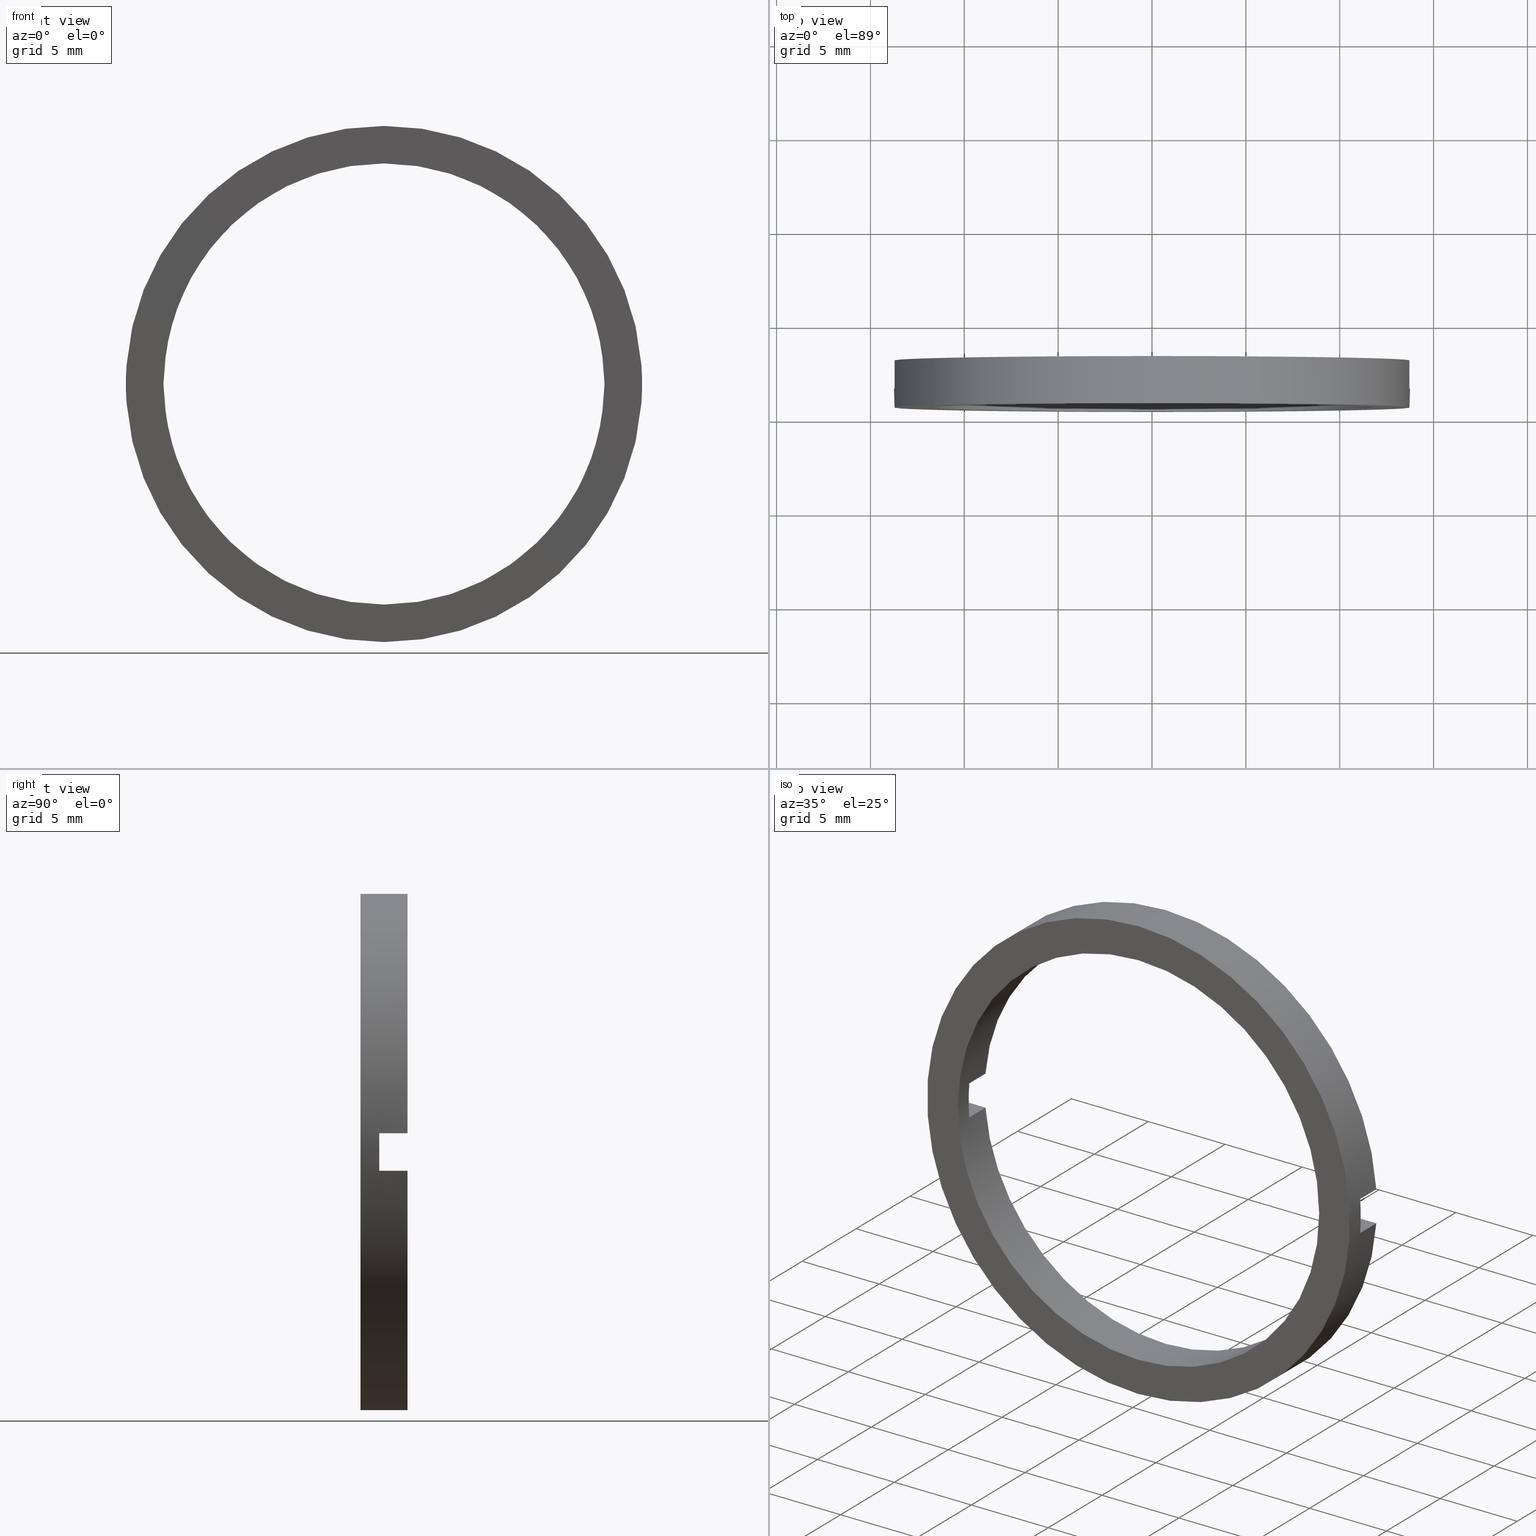
[diagram: canonical four-view strip — front | top / right | iso, engineering-drawing reading convention]
A machine part, canonical four-view strip (front | top / right | iso — engineering-drawing reading convention). The complete STEP part file that produces these views, byte-faithful:
ISO-10303-21;
HEADER;
FILE_DESCRIPTION (( 'STEP AP214' ),
    '1' );
FILE_NAME ('514008.STEP',
    '2019-09-18T06:48:36',
    ( '' ),
    ( '' ),
    'SwSTEP 2.0',
    'SolidWorks 2016',
    '' );
FILE_SCHEMA (( 'AUTOMOTIVE_DESIGN' ));
ENDSEC;

DATA;
#1 = DIRECTION ( 'NONE',  ( 0.0000000000000000000, -1.000000000000000000, 0.0000000000000000000 ) ) ;
#2 = MECHANICAL_DESIGN_GEOMETRIC_PRESENTATION_REPRESENTATION (  '', ( #263 ), #137 ) ;
#3 = DIRECTION ( 'NONE',  ( 0.0000000000000000000, 0.0000000000000000000, 1.000000000000000000 ) ) ;
#4 = EDGE_LOOP ( 'NONE', ( #395, #447, #449, #349 ) ) ;
#5 = CIRCLE ( 'NONE', #358, 11.75000000000000700 ) ;
#6 = ORIENTED_EDGE ( 'NONE', *, *, #388, .T. ) ;
#7 = FILL_AREA_STYLE_COLOUR ( '', #96 ) ;
#8 = PRODUCT_DEFINITION_SHAPE ( 'NONE', 'NONE',  #132 ) ;
#9 = DIRECTION ( 'NONE',  ( -1.000000000000000000, 0.0000000000000000000, -0.0000000000000000000 ) ) ;
#10 = VECTOR ( 'NONE', #275, 1000.000000000000000 ) ;
#11 = EDGE_CURVE ( 'NONE', #53, #174, #494, .T. ) ;
#12 = ORIENTED_EDGE ( 'NONE', *, *, #147, .T. ) ;
#13 = PLANE ( 'NONE',  #306 ) ;
#14 = ADVANCED_FACE ( 'NONE', ( #414, #249 ), #177, .F. ) ;
#15 =( NAMED_UNIT ( * ) PLANE_ANGLE_UNIT ( ) SI_UNIT ( $, .RADIAN. ) );
#16 =( GEOMETRIC_REPRESENTATION_CONTEXT ( 3 ) GLOBAL_UNCERTAINTY_ASSIGNED_CONTEXT ( ( #217 ) ) GLOBAL_UNIT_ASSIGNED_CONTEXT ( ( #484, #439, #367 ) ) REPRESENTATION_CONTEXT ( 'NONE', 'WORKASPACE' ) );
#17 = CARTESIAN_POINT ( 'NONE',  ( 0.0000000000000000000, 0.0000000000000000000, 0.0000000000000000000 ) ) ;
#18 =( LENGTH_UNIT ( ) NAMED_UNIT ( * ) SI_UNIT ( .MILLI., .METRE. ) );
#19 = ADVANCED_FACE ( 'NONE', ( #98 ), #300, .F. ) ;
#20 = EDGE_CURVE ( 'NONE', #101, #59, #65, .T. ) ;
#21 = ORIENTED_EDGE ( 'NONE', *, *, #213, .F. ) ;
#22 = VECTOR ( 'NONE', #455, 1000.000000000000000 ) ;
#23 = CARTESIAN_POINT ( 'NONE',  ( -26.85254027261461800, -1.964249787179430900, 1.000000000000000000 ) ) ;
#24 = EDGE_CURVE ( 'NONE', #268, #174, #299, .T. ) ;
#25 = SURFACE_SIDE_STYLE ('',( #374 ) ) ;
#26 = ORIENTED_EDGE ( 'NONE', *, *, #154, .T. ) ;
#27 = FACE_OUTER_BOUND ( 'NONE', #413, .T. ) ;
#28 = ORIENTED_EDGE ( 'NONE', *, *, #176, .T. ) ;
#29 = CARTESIAN_POINT ( 'NONE',  ( -26.85254027261461800, -1.964249787179430900, -1.000000000000000000 ) ) ;
#30 = FILL_AREA_STYLE_COLOUR ( '', #314 ) ;
#31 = ORIENTED_EDGE ( 'NONE', *, *, #277, .T. ) ;
#32 = CIRCLE ( 'NONE', #92, 13.75000000000000700 ) ;
#33 = VECTOR ( 'NONE', #339, 1000.000000000000000 ) ;
#34 = DIRECTION ( 'NONE',  ( -0.0000000000000000000, 1.000000000000000000, -0.0000000000000000000 ) ) ;
#35 = CARTESIAN_POINT ( 'NONE',  ( 11.75000000000000700, -1.964249787179430900, 0.0000000000000000000 ) ) ;
#36 = DIRECTION ( 'NONE',  ( 0.0000000000000000000, 0.0000000000000000000, 1.000000000000000000 ) ) ;
#37 = CARTESIAN_POINT ( 'NONE',  ( 0.0000000000000000000, -3.464249787179431100, 0.0000000000000000000 ) ) ;
#38 = PRESENTATION_LAYER_ASSIGNMENT (  '', '', ( #392 ) ) ;
#39 = VERTEX_POINT ( 'NONE', #131 ) ;
#40 = DIRECTION ( 'NONE',  ( -0.0000000000000000000, 1.000000000000000000, -0.0000000000000000000 ) ) ;
#41 = CARTESIAN_POINT ( 'NONE',  ( 0.0000000000000000000, -4.464249787179428900, 0.0000000000000000000 ) ) ;
#42 = DIRECTION ( 'NONE',  ( -0.0000000000000000000, -1.000000000000000000, -0.0000000000000000000 ) ) ;
#43 = EDGE_CURVE ( 'NONE', #474, #473, #380, .T. ) ;
#44 = ORIENTED_EDGE ( 'NONE', *, *, #245, .F. ) ;
#45 = DIRECTION ( 'NONE',  ( -0.0000000000000000000, 1.000000000000000000, -0.0000000000000000000 ) ) ;
#46 = FACE_OUTER_BOUND ( 'NONE', #272, .T. ) ;
#47 = ADVANCED_FACE ( 'NONE', ( #438 ), #175, .F. ) ;
#48 = CARTESIAN_POINT ( 'NONE',  ( 1.683889348827611600E-015, -4.464249787179428900, -13.75000000000000700 ) ) ;
#49 = CARTESIAN_POINT ( 'NONE',  ( -13.71358815190248300, -3.464249787179428400, 0.9999999999999995600 ) ) ;
#50 = ADVANCED_FACE ( 'NONE', ( #362 ), #448, .T. ) ;
#51 = APPLICATION_PROTOCOL_DEFINITION ( 'draft international standard', 'automotive_design', 1998, #87 ) ;
#52 = EDGE_CURVE ( 'NONE', #93, #234, #293, .T. ) ;
#53 = VERTEX_POINT ( 'NONE', #95 ) ;
#54 = DIRECTION ( 'NONE',  ( 1.000000000000000000, 0.0000000000000000000, 0.0000000000000000000 ) ) ;
#55 =( NAMED_UNIT ( * ) PLANE_ANGLE_UNIT ( ) SI_UNIT ( $, .RADIAN. ) );
#56 = DIRECTION ( 'NONE',  ( 0.0000000000000000000, -0.0000000000000000000, -1.000000000000000000 ) ) ;
#57 = ORIENTED_EDGE ( 'NONE', *, *, #311, .T. ) ;
#58 = DIRECTION ( 'NONE',  ( -1.000000000000000000, -0.0000000000000000000, -0.0000000000000000000 ) ) ;
#59 = VERTEX_POINT ( 'NONE', #61 ) ;
#60 = CIRCLE ( 'NONE', #500, 11.75000000000000700 ) ;
#61 = CARTESIAN_POINT ( 'NONE',  ( 11.70736947396810200, -3.464249787179428400, 0.9999999999999995600 ) ) ;
#62 = EDGE_CURVE ( 'NONE', #59, #408, #303, .T. ) ;
#63 = DIRECTION ( 'NONE',  ( 0.0000000000000000000, -1.000000000000000000, 0.0000000000000000000 ) ) ;
#64 = VERTEX_POINT ( 'NONE', #456 ) ;
#65 = LINE ( 'NONE', #451, #94 ) ;
#66 = CARTESIAN_POINT ( 'NONE',  ( 0.0000000000000000000, 56.26084262701361600, 0.0000000000000000000 ) ) ;
#67 = PRESENTATION_LAYER_ASSIGNMENT (  '', '', ( #196 ) ) ;
#68 = CARTESIAN_POINT ( 'NONE',  ( 0.0000000000000000000, -3.464249787179428400, 0.0000000000000000000 ) ) ;
#69 = ORIENTED_EDGE ( 'NONE', *, *, #11, .T. ) ;
#70 = FACE_OUTER_BOUND ( 'NONE', #400, .T. ) ;
#71 = EDGE_CURVE ( 'NONE', #372, #201, #188, .T. ) ;
#72 = CARTESIAN_POINT ( 'NONE',  ( -26.85254027261461800, -3.464249787179431100, -1.000000000000000000 ) ) ;
#73 = CARTESIAN_POINT ( 'NONE',  ( 0.0000000000000000000, -1.964249787179434000, 13.75000000000000700 ) ) ;
#74 = LINE ( 'NONE', #378, #82 ) ;
#75 = EDGE_CURVE ( 'NONE', #442, #325, #60, .T. ) ;
#76 = DIRECTION ( 'NONE',  ( 0.0000000000000000000, 0.0000000000000000000, 1.000000000000000000 ) ) ;
#77 = DIRECTION ( 'NONE',  ( 0.0000000000000000000, -0.0000000000000000000, 1.000000000000000000 ) ) ;
#78 =( GEOMETRIC_REPRESENTATION_CONTEXT ( 3 ) GLOBAL_UNCERTAINTY_ASSIGNED_CONTEXT ( ( #343 ) ) GLOBAL_UNIT_ASSIGNED_CONTEXT ( ( #252, #15, #480 ) ) REPRESENTATION_CONTEXT ( 'NONE', 'WORKASPACE' ) );
#79 = CARTESIAN_POINT ( 'NONE',  ( 13.71358815190248500, 56.26084262701361600, -1.000000000000000000 ) ) ;
#80 = CIRCLE ( 'NONE', #403, 11.75000000000000700 ) ;
#81 = ORIENTED_EDGE ( 'NONE', *, *, #277, .F. ) ;
#82 = VECTOR ( 'NONE', #269, 1000.000000000000000 ) ;
#83 = CARTESIAN_POINT ( 'NONE',  ( -26.85254027261461800, -3.464249787179431100, -1.000000000000000000 ) ) ;
#84 = UNCERTAINTY_MEASURE_WITH_UNIT (LENGTH_MEASURE( 1.000000000000000100E-005 ), #18, 'distance_accuracy_value', 'NONE');
#85 = DIRECTION ( 'NONE',  ( 0.0000000000000000000, -1.000000000000000000, 0.0000000000000000000 ) ) ;
#86 = AXIS2_PLACEMENT_3D ( 'NONE', #264, #491, #410 ) ;
#87 = APPLICATION_CONTEXT ( 'automotive_design' ) ;
#88 = VECTOR ( 'NONE', #304, 1000.000000000000000 ) ;
#89 = ADVANCED_BREP_SHAPE_REPRESENTATION ( '514008', ( #501, #405 ), #171 ) ;
#90 = CARTESIAN_POINT ( 'NONE',  ( 0.0000000000000000000, -4.464249787179428900, 0.0000000000000000000 ) ) ;
#91 = APPLICATION_PROTOCOL_DEFINITION ( 'draft international standard', 'automotive_design', 1998, #124 ) ;
#92 = AXIS2_PLACEMENT_3D ( 'NONE', #41, #324, #322 ) ;
#93 = VERTEX_POINT ( 'NONE', #274 ) ;
#94 = VECTOR ( 'NONE', #223, 1000.000000000000000 ) ;
#95 = CARTESIAN_POINT ( 'NONE',  ( -13.71358815190248800, -1.964249787179430900, 1.000000000000000000 ) ) ;
#96 = COLOUR_RGB ( '',1.000000000000000000, 1.000000000000000000, 1.000000000000000000 ) ;
#97 = ORIENTED_EDGE ( 'NONE', *, *, #204, .T. ) ;
#98 = FACE_OUTER_BOUND ( 'NONE', #436, .T. ) ;
#99 = EDGE_CURVE ( 'NONE', #53, #209, #262, .T. ) ;
#100 = DIRECTION ( 'NONE',  ( -0.0000000000000000000, 1.000000000000000000, -0.0000000000000000000 ) ) ;
#101 = VERTEX_POINT ( 'NONE', #138 ) ;
#102 = VECTOR ( 'NONE', #117, 1000.000000000000000 ) ;
#103 = ORIENTED_EDGE ( 'NONE', *, *, #176, .F. ) ;
#104 = LINE ( 'NONE', #29, #423 ) ;
#105 = DIRECTION ( 'NONE',  ( 0.0000000000000000000, 0.0000000000000000000, 1.000000000000000000 ) ) ;
#106 = DIRECTION ( 'NONE',  ( 0.0000000000000000000, 0.0000000000000000000, -1.000000000000000000 ) ) ;
#107 = CARTESIAN_POINT ( 'NONE',  ( 0.0000000000000000000, -1.964249787179434000, 0.0000000000000000000 ) ) ;
#108 = DIRECTION ( 'NONE',  ( -0.0000000000000000000, 1.000000000000000000, -0.0000000000000000000 ) ) ;
#109 = CYLINDRICAL_SURFACE ( 'NONE', #377, 13.75000000000000700 ) ;
#110 = ORIENTED_EDGE ( 'NONE', *, *, #370, .F. ) ;
#111 = AXIS2_PLACEMENT_3D ( 'NONE', #310, #106, #229 ) ;
#112 = ORIENTED_EDGE ( 'NONE', *, *, #52, .F. ) ;
#113 = CARTESIAN_POINT ( 'NONE',  ( 1.438959988998140900E-015, -1.964249787179434000, -11.75000000000000700 ) ) ;
#114 = ORIENTED_EDGE ( 'NONE', *, *, #490, .T. ) ;
#115 = ORIENTED_EDGE ( 'NONE', *, *, #153, .F. ) ;
#116 = DIRECTION ( 'NONE',  ( -0.0000000000000000000, 0.0000000000000000000, 1.000000000000000000 ) ) ;
#117 = DIRECTION ( 'NONE',  ( -0.0000000000000000000, 1.000000000000000000, -0.0000000000000000000 ) ) ;
#118 = AXIS2_PLACEMENT_3D ( 'NONE', #145, #100, #452 ) ;
#119 = ADVANCED_FACE ( 'NONE', ( #46 ), #225, .F. ) ;
#120 = SURFACE_STYLE_USAGE ( .BOTH. , #433 ) ;
#121 = ORIENTED_EDGE ( 'NONE', *, *, #346, .F. ) ;
#122 = VECTOR ( 'NONE', #342, 1000.000000000000000 ) ;
#123 = CARTESIAN_POINT ( 'NONE',  ( 0.0000000000000000000, -1.964249787179434000, 0.0000000000000000000 ) ) ;
#124 = APPLICATION_CONTEXT ( 'automotive_design' ) ;
#125 = CARTESIAN_POINT ( 'NONE',  ( 0.0000000000000000000, -1.964249787179434000, 0.0000000000000000000 ) ) ;
#126 = EDGE_CURVE ( 'NONE', #234, #350, #321, .T. ) ;
#127 = DIRECTION ( 'NONE',  ( -0.0000000000000000000, 1.000000000000000000, -0.0000000000000000000 ) ) ;
#128 = VERTEX_POINT ( 'NONE', #181 ) ;
#129 = LINE ( 'NONE', #251, #102 ) ;
#130 = EDGE_CURVE ( 'NONE', #201, #442, #386, .T. ) ;
#131 = CARTESIAN_POINT ( 'NONE',  ( 13.71358815190246900, -1.964249787179430900, -1.000000000000000000 ) ) ;
#132 = PRODUCT_DEFINITION ( 'δ֪', '', #168, #283 ) ;
#133 = CARTESIAN_POINT ( 'NONE',  ( -26.85254027261461800, -3.464249787179431100, 1.000000000000000000 ) ) ;
#134 = ORIENTED_EDGE ( 'NONE', *, *, #71, .F. ) ;
#135 = ORIENTED_EDGE ( 'NONE', *, *, #52, .T. ) ;
#136 = DIRECTION ( 'NONE',  ( 0.0000000000000000000, 0.0000000000000000000, 1.000000000000000000 ) ) ;
#137 =( GEOMETRIC_REPRESENTATION_CONTEXT ( 3 ) GLOBAL_UNCERTAINTY_ASSIGNED_CONTEXT ( ( #173 ) ) GLOBAL_UNIT_ASSIGNED_CONTEXT ( ( #417, #502, #305 ) ) REPRESENTATION_CONTEXT ( 'NONE', 'WORKASPACE' ) );
#138 = CARTESIAN_POINT ( 'NONE',  ( 11.70736947396810200, -1.964249787179434000, 0.9999999999999995600 ) ) ;
#139 = SURFACE_STYLE_FILL_AREA ( #291 ) ;
#140 = CARTESIAN_POINT ( 'NONE',  ( -11.70736947396810200, -1.964249787179434000, 0.9999999999999995600 ) ) ;
#141 = ORIENTED_EDGE ( 'NONE', *, *, #126, .T. ) ;
#142 = VECTOR ( 'NONE', #197, 1000.000000000000000 ) ;
#143 = AXIS2_PLACEMENT_3D ( 'NONE', #244, #116, #290 ) ;
#144 = DIRECTION ( 'NONE',  ( 0.0000000000000000000, 1.000000000000000000, 0.0000000000000000000 ) ) ;
#145 = CARTESIAN_POINT ( 'NONE',  ( 0.0000000000000000000, -1.964249787179434000, 0.0000000000000000000 ) ) ;
#146 = ORIENTED_EDGE ( 'NONE', *, *, #20, .F. ) ;
#147 = EDGE_CURVE ( 'NONE', #39, #442, #104, .T. ) ;
#148 = DIRECTION ( 'NONE',  ( 0.0000000000000000000, -1.000000000000000000, 0.0000000000000000000 ) ) ;
#149 = DIRECTION ( 'NONE',  ( -0.0000000000000000000, -1.000000000000000000, -0.0000000000000000000 ) ) ;
#150 =( GEOMETRIC_REPRESENTATION_CONTEXT ( 3 ) GLOBAL_UNCERTAINTY_ASSIGNED_CONTEXT ( ( #231 ) ) GLOBAL_UNIT_ASSIGNED_CONTEXT ( ( #468, #398, #397 ) ) REPRESENTATION_CONTEXT ( 'NONE', 'WORKASPACE' ) );
#151 = DIRECTION ( 'NONE',  ( 0.0000000000000000000, 1.000000000000000000, 0.0000000000000000000 ) ) ;
#152 = ORIENTED_EDGE ( 'NONE', *, *, #270, .T. ) ;
#153 = EDGE_CURVE ( 'NONE', #64, #101, #166, .T. ) ;
#154 = EDGE_CURVE ( 'NONE', #354, #325, #74, .T. ) ;
#155 = DIRECTION ( 'NONE',  ( -0.0000000000000000000, 1.000000000000000000, -0.0000000000000000000 ) ) ;
#156 = ORIENTED_EDGE ( 'NONE', *, *, #232, .T. ) ;
#157 = DIRECTION ( 'NONE',  ( 0.0000000000000000000, 0.0000000000000000000, -1.000000000000000000 ) ) ;
#158 = VECTOR ( 'NONE', #58, 1000.000000000000000 ) ;
#159 = CARTESIAN_POINT ( 'NONE',  ( 0.0000000000000000000, -1.964249787179434000, 0.0000000000000000000 ) ) ;
#160 = DIRECTION ( 'NONE',  ( 0.0000000000000000000, 0.0000000000000000000, 1.000000000000000000 ) ) ;
#161 = CARTESIAN_POINT ( 'NONE',  ( 13.71358815190248300, -3.464249787179428400, -0.9999999999999995600 ) ) ;
#162 = EDGE_CURVE ( 'NONE', #215, #209, #506, .T. ) ;
#163 = FILL_AREA_STYLE_COLOUR ( '', #381 ) ;
#164 = FACE_OUTER_BOUND ( 'NONE', #165, .T. ) ;
#165 = EDGE_LOOP ( 'NONE', ( #69, #288, #505, #486 ) ) ;
#166 = CIRCLE ( 'NONE', #289, 11.75000000000000700 ) ;
#167 = CARTESIAN_POINT ( 'NONE',  ( -26.85254027261461800, -3.464249787179431100, 1.000000000000000000 ) ) ;
#168 = PRODUCT_DEFINITION_FORMATION_WITH_SPECIFIED_SOURCE ( '�κ�', '', #236, .NOT_KNOWN. ) ;
#169 = ADVANCED_FACE ( 'NONE', ( #70 ), #109, .T. ) ;
#170 = DIRECTION ( 'NONE',  ( 1.000000000000000000, 0.0000000000000000000, 0.0000000000000000000 ) ) ;
#171 =( GEOMETRIC_REPRESENTATION_CONTEXT ( 3 ) GLOBAL_UNCERTAINTY_ASSIGNED_CONTEXT ( ( #84 ) ) GLOBAL_UNIT_ASSIGNED_CONTEXT ( ( #18, #55, #402 ) ) REPRESENTATION_CONTEXT ( 'NONE', 'WORKASPACE' ) );
#172 = VECTOR ( 'NONE', #155, 1000.000000000000000 ) ;
#173 = UNCERTAINTY_MEASURE_WITH_UNIT (LENGTH_MEASURE( 1.000000000000000100E-005 ), #417, 'distance_accuracy_value', 'NONE');
#174 = VERTEX_POINT ( 'NONE', #140 ) ;
#175 = CYLINDRICAL_SURFACE ( 'NONE', #426, 11.75000000000000700 ) ;
#176 = EDGE_CURVE ( 'NONE', #284, #354, #186, .T. ) ;
#177 = PLANE ( 'NONE',  #86 ) ;
#178 = CARTESIAN_POINT ( 'NONE',  ( -11.70736947396810400, 56.26084262701361600, 1.000000000000000000 ) ) ;
#179 = AXIS2_PLACEMENT_3D ( 'NONE', #125, #296, #330 ) ;
#180 = ORIENTED_EDGE ( 'NONE', *, *, #204, .F. ) ;
#181 = CARTESIAN_POINT ( 'NONE',  ( 13.71358815190246900, -1.964249787179430900, 1.000000000000000000 ) ) ;
#182 = AXIS2_PLACEMENT_3D ( 'NONE', #444, #371, #338 ) ;
#183 = EDGE_CURVE ( 'NONE', #53, #350, #261, .T. ) ;
#184 = DIRECTION ( 'NONE',  ( -0.0000000000000000000, 1.000000000000000000, -0.0000000000000000000 ) ) ;
#185 = ORIENTED_EDGE ( 'NONE', *, *, #364, .F. ) ;
#186 = CIRCLE ( 'NONE', #328, 11.75000000000000700 ) ;
#187 = ORIENTED_EDGE ( 'NONE', *, *, #20, .T. ) ;
#188 = LINE ( 'NONE', #72, #391 ) ;
#189 = CARTESIAN_POINT ( 'NONE',  ( 11.70736947396810400, 56.26084262701361600, -1.000000000000000000 ) ) ;
#190 = CARTESIAN_POINT ( 'NONE',  ( -26.85254027261461800, -1.964249787179430900, 1.000000000000000000 ) ) ;
#191 = DIRECTION ( 'NONE',  ( -0.0000000000000000000, 1.000000000000000000, -0.0000000000000000000 ) ) ;
#192 = EDGE_CURVE ( 'NONE', #408, #372, #298, .T. ) ;
#193 = ORIENTED_EDGE ( 'NONE', *, *, #483, .T. ) ;
#194 = VECTOR ( 'NONE', #411, 1000.000000000000000 ) ;
#195 = CARTESIAN_POINT ( 'NONE',  ( 11.70736947396810200, -3.464249787179428400, -0.9999999999999995600 ) ) ;
#196 = STYLED_ITEM ( 'NONE', ( #345 ), #89 ) ;
#197 = DIRECTION ( 'NONE',  ( -0.0000000000000000000, 1.000000000000000000, -0.0000000000000000000 ) ) ;
#198 = AXIS2_PLACEMENT_3D ( 'NONE', #37, #151, #77 ) ;
#199 = ORIENTED_EDGE ( 'NONE', *, *, #460, .T. ) ;
#200 = ORIENTED_EDGE ( 'NONE', *, *, #490, .F. ) ;
#201 = VERTEX_POINT ( 'NONE', #195 ) ;
#202 = DIRECTION ( 'NONE',  ( -0.0000000000000000000, 1.000000000000000000, -0.0000000000000000000 ) ) ;
#203 = CARTESIAN_POINT ( 'NONE',  ( 13.71358815190248300, -3.464249787179428400, 0.9999999999999995600 ) ) ;
#204 = EDGE_CURVE ( 'NONE', #354, #284, #80, .T. ) ;
#205 = CARTESIAN_POINT ( 'NONE',  ( -11.70736947396810400, 56.26084262701361600, -1.000000000000000000 ) ) ;
#206 = ADVANCED_FACE ( 'NONE', ( #487 ), #504, .T. ) ;
#207 = COLOUR_RGB ( '',1.000000000000000000, 1.000000000000000000, 1.000000000000000000 ) ;
#208 = ORIENTED_EDGE ( 'NONE', *, *, #24, .T. ) ;
#209 = VERTEX_POINT ( 'NONE', #73 ) ;
#210 = AXIS2_PLACEMENT_3D ( 'NONE', #477, #363, #443 ) ;
#211 = FILL_AREA_STYLE ('',( #163 ) ) ;
#212 = PLANE ( 'NONE',  #265 ) ;
#213 = EDGE_CURVE ( 'NONE', #214, #473, #384, .T. ) ;
#214 = VERTEX_POINT ( 'NONE', #237 ) ;
#215 = VERTEX_POINT ( 'NONE', #353 ) ;
#216 = EDGE_CURVE ( 'NONE', #101, #128, #355, .T. ) ;
#217 = UNCERTAINTY_MEASURE_WITH_UNIT (LENGTH_MEASURE( 1.000000000000000100E-005 ), #484, 'distance_accuracy_value', 'NONE');
#218 = ADVANCED_FACE ( 'NONE', ( #243 ), #465, .F. ) ;
#219 = CARTESIAN_POINT ( 'NONE',  ( 0.0000000000000000000, 56.26084262701361600, 0.0000000000000000000 ) ) ;
#220 = FACE_OUTER_BOUND ( 'NONE', #489, .T. ) ;
#221 = ORIENTED_EDGE ( 'NONE', *, *, #460, .F. ) ;
#222 = ORIENTED_EDGE ( 'NONE', *, *, #364, .T. ) ;
#223 = DIRECTION ( 'NONE',  ( 0.0000000000000000000, -1.000000000000000000, 0.0000000000000000000 ) ) ;
#224 = DIRECTION ( 'NONE',  ( 0.0000000000000000000, 0.0000000000000000000, 1.000000000000000000 ) ) ;
#225 = PLANE ( 'NONE',  #111 ) ;
#226 = PRODUCT_RELATED_PRODUCT_CATEGORY ( 'part', '', ( #236 ) ) ;
#227 = FACE_OUTER_BOUND ( 'NONE', #383, .T. ) ;
#228 = ORIENTED_EDGE ( 'NONE', *, *, #270, .F. ) ;
#229 = DIRECTION ( 'NONE',  ( -1.000000000000000000, 0.0000000000000000000, -0.0000000000000000000 ) ) ;
#230 = DIRECTION ( 'NONE',  ( -0.0000000000000000000, 1.000000000000000000, -0.0000000000000000000 ) ) ;
#231 = UNCERTAINTY_MEASURE_WITH_UNIT (LENGTH_MEASURE( 1.000000000000000100E-005 ), #468, 'distance_accuracy_value', 'NONE');
#232 = EDGE_CURVE ( 'NONE', #174, #64, #256, .T. ) ;
#233 = CARTESIAN_POINT ( 'NONE',  ( 0.0000000000000000000, -3.464249787179428400, 0.0000000000000000000 ) ) ;
#234 = VERTEX_POINT ( 'NONE', #316 ) ;
#235 = ORIENTED_EDGE ( 'NONE', *, *, #213, .T. ) ;
#236 = PRODUCT ( '514008', '514008', '', ( #253 ) ) ;
#237 = CARTESIAN_POINT ( 'NONE',  ( 1.683889348827611600E-015, -1.964249787179434000, -13.75000000000000700 ) ) ;
#238 = AXIS2_PLACEMENT_3D ( 'NONE', #107, #312, #76 ) ;
#239 = CARTESIAN_POINT ( 'NONE',  ( 0.0000000000000000000, 56.26084262701361600, 0.0000000000000000000 ) ) ;
#240 = CIRCLE ( 'NONE', #366, 11.75000000000000700 ) ;
#241 = EDGE_CURVE ( 'NONE', #268, #93, #248, .T. ) ;
#242 = ORIENTED_EDGE ( 'NONE', *, *, #445, .F. ) ;
#243 = FACE_OUTER_BOUND ( 'NONE', #341, .T. ) ;
#244 = CARTESIAN_POINT ( 'NONE',  ( -26.85254027261461800, -3.464249787179431100, 1.000000000000000000 ) ) ;
#245 = EDGE_CURVE ( 'NONE', #284, #64, #454, .T. ) ;
#246 = DIRECTION ( 'NONE',  ( -0.0000000000000000000, 1.000000000000000000, -0.0000000000000000000 ) ) ;
#247 = CARTESIAN_POINT ( 'NONE',  ( -13.71358815190248800, -1.964249787179430900, -1.000000000000000000 ) ) ;
#248 = CIRCLE ( 'NONE', #282, 11.75000000000000700 ) ;
#249 = FACE_BOUND ( 'NONE', #493, .T. ) ;
#250 = DIRECTION ( 'NONE',  ( 0.0000000000000000000, -1.000000000000000000, 0.0000000000000000000 ) ) ;
#251 = CARTESIAN_POINT ( 'NONE',  ( -13.71358815190248500, 56.26084262701361600, -1.000000000000000000 ) ) ;
#252 =( LENGTH_UNIT ( ) NAMED_UNIT ( * ) SI_UNIT ( .MILLI., .METRE. ) );
#253 = PRODUCT_CONTEXT ( 'NONE', #87, 'mechanical' ) ;
#254 = DIRECTION ( 'NONE',  ( -0.0000000000000000000, 0.0000000000000000000, 1.000000000000000000 ) ) ;
#255 = ORIENTED_EDGE ( 'NONE', *, *, #241, .F. ) ;
#256 = CIRCLE ( 'NONE', #257, 11.75000000000000700 ) ;
#257 = AXIS2_PLACEMENT_3D ( 'NONE', #424, #191, #462 ) ;
#258 = FILL_AREA_STYLE ('',( #404 ) ) ;
#259 = ADVANCED_FACE ( 'NONE', ( #27 ), #390, .F. ) ;
#260 = ORIENTED_EDGE ( 'NONE', *, *, #162, .F. ) ;
#261 = LINE ( 'NONE', #427, #373 ) ;
#262 = CIRCLE ( 'NONE', #118, 13.75000000000000700 ) ;
#263 = STYLED_ITEM ( 'NONE', ( #273 ), #169 ) ;
#264 = CARTESIAN_POINT ( 'NONE',  ( 11.75000000000000700, -4.464249787179429800, 0.0000000000000000000 ) ) ;
#265 = AXIS2_PLACEMENT_3D ( 'NONE', #167, #254, #54 ) ;
#266 = PRESENTATION_STYLE_ASSIGNMENT (( #120 ) ) ;
#267 = DIRECTION ( 'NONE',  ( -1.000000000000000000, -0.0000000000000000000, -0.0000000000000000000 ) ) ;
#268 = VERTEX_POINT ( 'NONE', #467 ) ;
#269 = DIRECTION ( 'NONE',  ( -0.0000000000000000000, 1.000000000000000000, -0.0000000000000000000 ) ) ;
#270 = EDGE_CURVE ( 'NONE', #215, #430, #32, .T. ) ;
#271 = EDGE_LOOP ( 'NONE', ( #242, #114, #464, #309, #297, #419, #31, #21 ) ) ;
#272 = EDGE_LOOP ( 'NONE', ( #112, #110, #488, #81 ) ) ;
#273 = PRESENTATION_STYLE_ASSIGNMENT (( #457 ) ) ;
#274 = CARTESIAN_POINT ( 'NONE',  ( -11.70736947396810200, -3.464249787179428400, -0.9999999999999995600 ) ) ;
#275 = DIRECTION ( 'NONE',  ( 1.000000000000000000, 0.0000000000000000000, 0.0000000000000000000 ) ) ;
#276 = CARTESIAN_POINT ( 'NONE',  ( -26.85254027261461800, -3.464249787179431100, 1.000000000000000000 ) ) ;
#277 = EDGE_CURVE ( 'NONE', #234, #473, #129, .T. ) ;
#278 = CARTESIAN_POINT ( 'NONE',  ( 1.438959988998140900E-015, -4.464249787179428900, -11.75000000000000700 ) ) ;
#279 = ORIENTED_EDGE ( 'NONE', *, *, #192, .F. ) ;
#280 = CARTESIAN_POINT ( 'NONE',  ( 0.0000000000000000000, 56.26084262701361600, 11.75000000000000700 ) ) ;
#281 = CARTESIAN_POINT ( 'NONE',  ( 0.0000000000000000000, -4.464249787179428900, 0.0000000000000000000 ) ) ;
#282 = AXIS2_PLACEMENT_3D ( 'NONE', #389, #149, #428 ) ;
#283 = PRODUCT_DEFINITION_CONTEXT ( 'detailed design', #124, 'design' ) ;
#284 = VERTEX_POINT ( 'NONE', #393 ) ;
#285 = LINE ( 'NONE', #359, #172 ) ;
#286 = DIRECTION ( 'NONE',  ( 0.0000000000000000000, 0.0000000000000000000, 1.000000000000000000 ) ) ;
#287 = ORIENTED_EDGE ( 'NONE', *, *, #232, .F. ) ;
#288 = ORIENTED_EDGE ( 'NONE', *, *, #24, .F. ) ;
#289 = AXIS2_PLACEMENT_3D ( 'NONE', #420, #184, #105 ) ;
#290 = DIRECTION ( 'NONE',  ( 1.000000000000000000, 0.0000000000000000000, 0.0000000000000000000 ) ) ;
#291 = FILL_AREA_STYLE ('',( #7 ) ) ;
#292 = VECTOR ( 'NONE', #246, 1000.000000000000000 ) ;
#293 = LINE ( 'NONE', #375, #194 ) ;
#294 = AXIS2_PLACEMENT_3D ( 'NONE', #90, #127, #441 ) ;
#295 = SURFACE_STYLE_USAGE ( .BOTH. , #369 ) ;
#296 = DIRECTION ( 'NONE',  ( -0.0000000000000000000, 1.000000000000000000, -0.0000000000000000000 ) ) ;
#297 = ORIENTED_EDGE ( 'NONE', *, *, #183, .T. ) ;
#298 = CIRCLE ( 'NONE', #352, 13.75000000000000700 ) ;
#299 = LINE ( 'NONE', #178, #33 ) ;
#300 = PLANE ( 'NONE',  #472 ) ;
#301 = PRESENTATION_STYLE_ASSIGNMENT (( #295 ) ) ;
#302 = ORIENTED_EDGE ( 'NONE', *, *, #153, .T. ) ;
#303 = LINE ( 'NONE', #133, #22 ) ;
#304 = DIRECTION ( 'NONE',  ( -0.0000000000000000000, 1.000000000000000000, -0.0000000000000000000 ) ) ;
#305 =( NAMED_UNIT ( * ) SI_UNIT ( $, .STERADIAN. ) SOLID_ANGLE_UNIT ( ) );
#306 = AXIS2_PLACEMENT_3D ( 'NONE', #83, #157, #9 ) ;
#307 = DIRECTION ( 'NONE',  ( -0.0000000000000000000, 1.000000000000000000, -0.0000000000000000000 ) ) ;
#308 = ORIENTED_EDGE ( 'NONE', *, *, #216, .F. ) ;
#309 = ORIENTED_EDGE ( 'NONE', *, *, #99, .F. ) ;
#310 = CARTESIAN_POINT ( 'NONE',  ( -26.85254027261461800, -3.464249787179431100, -1.000000000000000000 ) ) ;
#311 = EDGE_CURVE ( 'NONE', #350, #268, #431, .T. ) ;
#312 = DIRECTION ( 'NONE',  ( -0.0000000000000000000, 1.000000000000000000, -0.0000000000000000000 ) ) ;
#313 = CIRCLE ( 'NONE', #294, 13.75000000000000700 ) ;
#314 = COLOUR_RGB ( '',1.000000000000000000, 1.000000000000000000, 1.000000000000000000 ) ;
#315 = AXIS2_PLACEMENT_3D ( 'NONE', #239, #108, #3 ) ;
#316 = CARTESIAN_POINT ( 'NONE',  ( -13.71358815190248300, -3.464249787179428400, -0.9999999999999995600 ) ) ;
#317 = DIRECTION ( 'NONE',  ( 0.0000000000000000000, 0.0000000000000000000, 1.000000000000000000 ) ) ;
#318 = ORIENTED_EDGE ( 'NONE', *, *, #99, .T. ) ;
#319 = VECTOR ( 'NONE', #351, 1000.000000000000000 ) ;
#320 = ORIENTED_EDGE ( 'NONE', *, *, #388, .F. ) ;
#321 = CIRCLE ( 'NONE', #323, 13.75000000000000700 ) ;
#322 = DIRECTION ( 'NONE',  ( 0.0000000000000000000, 0.0000000000000000000, 1.000000000000000000 ) ) ;
#323 = AXIS2_PLACEMENT_3D ( 'NONE', #68, #144, #224 ) ;
#324 = DIRECTION ( 'NONE',  ( -0.0000000000000000000, 1.000000000000000000, -0.0000000000000000000 ) ) ;
#325 = VERTEX_POINT ( 'NONE', #113 ) ;
#326 = ORIENTED_EDGE ( 'NONE', *, *, #421, .T. ) ;
#327 = CARTESIAN_POINT ( 'NONE',  ( 0.0000000000000000000, -3.464249787179428400, 0.0000000000000000000 ) ) ;
#328 = AXIS2_PLACEMENT_3D ( 'NONE', #281, #40, #317 ) ;
#329 = SURFACE_STYLE_USAGE ( .BOTH. , #481 ) ;
#330 = DIRECTION ( 'NONE',  ( 0.0000000000000000000, 0.0000000000000000000, 1.000000000000000000 ) ) ;
#331 = VECTOR ( 'NONE', #250, 1000.000000000000000 ) ;
#332 = AXIS2_PLACEMENT_3D ( 'NONE', #35, #1, #425 ) ;
#333 = CLOSED_SHELL ( 'NONE', ( #47, #169, #259, #476, #19, #218, #14, #206, #406, #365, #478, #119, #50 ) ) ;
#334 = DIRECTION ( 'NONE',  ( 1.000000000000000000, 0.0000000000000000000, 0.0000000000000000000 ) ) ;
#335 = ORIENTED_EDGE ( 'NONE', *, *, #130, .F. ) ;
#336 = VECTOR ( 'NONE', #85, 1000.000000000000000 ) ;
#337 = PRESENTATION_LAYER_ASSIGNMENT (  '', '', ( #263 ) ) ;
#338 = DIRECTION ( 'NONE',  ( 0.0000000000000000000, -0.0000000000000000000, 1.000000000000000000 ) ) ;
#339 = DIRECTION ( 'NONE',  ( -0.0000000000000000000, 1.000000000000000000, -0.0000000000000000000 ) ) ;
#340 = DIRECTION ( 'NONE',  ( 0.0000000000000000000, 0.0000000000000000000, 1.000000000000000000 ) ) ;
#341 = EDGE_LOOP ( 'NONE', ( #496, #103, #499, #302, #187, #121, #379, #498 ) ) ;
#342 = DIRECTION ( 'NONE',  ( -0.0000000000000000000, 1.000000000000000000, -0.0000000000000000000 ) ) ;
#343 = UNCERTAINTY_MEASURE_WITH_UNIT (LENGTH_MEASURE( 1.000000000000000100E-005 ), #252, 'distance_accuracy_value', 'NONE');
#344 = CARTESIAN_POINT ( 'NONE',  ( 0.0000000000000000000, 56.26084262701361600, 13.75000000000000700 ) ) ;
#345 = PRESENTATION_STYLE_ASSIGNMENT (( #329 ) ) ;
#346 = EDGE_CURVE ( 'NONE', #201, #59, #5, .T. ) ;
#347 = CARTESIAN_POINT ( 'NONE',  ( 0.0000000000000000000, -1.964249787179434000, 0.0000000000000000000 ) ) ;
#348 = DIRECTION ( 'NONE',  ( -1.000000000000000000, -0.0000000000000000000, -0.0000000000000000000 ) ) ;
#349 = ORIENTED_EDGE ( 'NONE', *, *, #62, .T. ) ;
#350 = VERTEX_POINT ( 'NONE', #49 ) ;
#351 = DIRECTION ( 'NONE',  ( 1.000000000000000000, 0.0000000000000000000, 0.0000000000000000000 ) ) ;
#352 = AXIS2_PLACEMENT_3D ( 'NONE', #233, #463, #503 ) ;
#353 = CARTESIAN_POINT ( 'NONE',  ( 0.0000000000000000000, -4.464249787179428900, 13.75000000000000700 ) ) ;
#354 = VERTEX_POINT ( 'NONE', #278 ) ;
#355 = LINE ( 'NONE', #190, #10 ) ;
#356 = MECHANICAL_DESIGN_GEOMETRIC_PRESENTATION_REPRESENTATION (  '', ( #196 ), #78 ) ;
#357 = CARTESIAN_POINT ( 'NONE',  ( 11.70736947396810200, -1.964249787179434000, -0.9999999999999995600 ) ) ;
#358 = AXIS2_PLACEMENT_3D ( 'NONE', #327, #42, #360 ) ;
#359 = CARTESIAN_POINT ( 'NONE',  ( 13.71358815190248500, 56.26084262701361600, 1.000000000000000000 ) ) ;
#360 = DIRECTION ( 'NONE',  ( 6.217248937900875800E-015, 0.0000000000000000000, 1.000000000000000000 ) ) ;
#361 = ORIENTED_EDGE ( 'NONE', *, *, #241, .T. ) ;
#362 = FACE_OUTER_BOUND ( 'NONE', #385, .T. ) ;
#363 = DIRECTION ( 'NONE',  ( -0.0000000000000000000, 1.000000000000000000, -0.0000000000000000000 ) ) ;
#364 = EDGE_CURVE ( 'NONE', #39, #372, #497, .T. ) ;
#365 = ADVANCED_FACE ( 'NONE', ( #227 ), #479, .F. ) ;
#366 = AXIS2_PLACEMENT_3D ( 'NONE', #123, #45, #286 ) ;
#367 =( NAMED_UNIT ( * ) SI_UNIT ( $, .STERADIAN. ) SOLID_ANGLE_UNIT ( ) );
#368 = ORIENTED_EDGE ( 'NONE', *, *, #370, .T. ) ;
#369 = SURFACE_SIDE_STYLE ('',( #376 ) ) ;
#370 = EDGE_CURVE ( 'NONE', #474, #93, #409, .T. ) ;
#371 = DIRECTION ( 'NONE',  ( 0.0000000000000000000, 1.000000000000000000, 0.0000000000000000000 ) ) ;
#372 = VERTEX_POINT ( 'NONE', #161 ) ;
#373 = VECTOR ( 'NONE', #148, 1000.000000000000000 ) ;
#374 = SURFACE_STYLE_FILL_AREA ( #382 ) ;
#375 = CARTESIAN_POINT ( 'NONE',  ( -26.85254027261461800, -3.464249787179431100, -1.000000000000000000 ) ) ;
#376 = SURFACE_STYLE_FILL_AREA ( #258 ) ;
#377 = AXIS2_PLACEMENT_3D ( 'NONE', #66, #230, #340 ) ;
#378 = CARTESIAN_POINT ( 'NONE',  ( 1.438959988998140900E-015, 56.26084262701361600, -11.75000000000000700 ) ) ;
#379 = ORIENTED_EDGE ( 'NONE', *, *, #130, .T. ) ;
#380 = LINE ( 'NONE', #446, #158 ) ;
#381 = COLOUR_RGB ( '',1.000000000000000000, 1.000000000000000000, 1.000000000000000000 ) ;
#382 = FILL_AREA_STYLE ('',( #30 ) ) ;
#383 = EDGE_LOOP ( 'NONE', ( #437, #146, #396, #320 ) ) ;
#384 = CIRCLE ( 'NONE', #238, 13.75000000000000700 ) ;
#385 = EDGE_LOOP ( 'NONE', ( #141, #57, #361, #135 ) ) ;
#386 = LINE ( 'NONE', #189, #122 ) ;
#387 = DIRECTION ( 'NONE',  ( 0.0000000000000000000, 0.0000000000000000000, 1.000000000000000000 ) ) ;
#388 = EDGE_CURVE ( 'NONE', #408, #128, #285, .T. ) ;
#389 = CARTESIAN_POINT ( 'NONE',  ( 0.0000000000000000000, -3.464249787179428400, 0.0000000000000000000 ) ) ;
#390 = PLANE ( 'NONE',  #332 ) ;
#391 = VECTOR ( 'NONE', #267, 1000.000000000000000 ) ;
#392 = STYLED_ITEM ( 'NONE', ( #266 ), #476 ) ;
#393 = CARTESIAN_POINT ( 'NONE',  ( 0.0000000000000000000, -4.464249787179428900, 11.75000000000000700 ) ) ;
#394 = ORIENTED_EDGE ( 'NONE', *, *, #421, .F. ) ;
#395 = ORIENTED_EDGE ( 'NONE', *, *, #192, .T. ) ;
#396 = ORIENTED_EDGE ( 'NONE', *, *, #216, .T. ) ;
#397 =( NAMED_UNIT ( * ) SI_UNIT ( $, .STERADIAN. ) SOLID_ANGLE_UNIT ( ) );
#398 =( NAMED_UNIT ( * ) PLANE_ANGLE_UNIT ( ) SI_UNIT ( $, .RADIAN. ) );
#399 = CYLINDRICAL_SURFACE ( 'NONE', #210, 13.75000000000000700 ) ;
#400 = EDGE_LOOP ( 'NONE', ( #152, #482, #459, #222, #279, #6, #394, #260 ) ) ;
#401 = ORIENTED_EDGE ( 'NONE', *, *, #11, .F. ) ;
#402 =( NAMED_UNIT ( * ) SI_UNIT ( $, .STERADIAN. ) SOLID_ANGLE_UNIT ( ) );
#403 = AXIS2_PLACEMENT_3D ( 'NONE', #422, #34, #36 ) ;
#404 = FILL_AREA_STYLE_COLOUR ( '', #207 ) ;
#405 = AXIS2_PLACEMENT_3D ( 'NONE', #17, #160, #170 ) ;
#406 = ADVANCED_FACE ( 'NONE', ( #220 ), #13, .F. ) ;
#407 = AXIS2_PLACEMENT_3D ( 'NONE', #159, #202, #475 ) ;
#408 = VERTEX_POINT ( 'NONE', #203 ) ;
#409 = LINE ( 'NONE', #205, #336 ) ;
#410 = DIRECTION ( 'NONE',  ( 0.0000000000000000000, 0.0000000000000000000, 1.000000000000000000 ) ) ;
#411 = DIRECTION ( 'NONE',  ( -1.000000000000000000, -0.0000000000000000000, -0.0000000000000000000 ) ) ;
#412 = CIRCLE ( 'NONE', #179, 13.75000000000000700 ) ;
#413 = EDGE_LOOP ( 'NONE', ( #318, #326, #308, #115, #287, #401 ) ) ;
#414 = FACE_OUTER_BOUND ( 'NONE', #418, .T. ) ;
#415 = CARTESIAN_POINT ( 'NONE',  ( 11.75000000000000700, -1.964249787179430900, 0.0000000000000000000 ) ) ;
#416 = MECHANICAL_DESIGN_GEOMETRIC_PRESENTATION_REPRESENTATION (  '', ( #392 ), #150 ) ;
#417 =( LENGTH_UNIT ( ) NAMED_UNIT ( * ) SI_UNIT ( .MILLI., .METRE. ) );
#418 = EDGE_LOOP ( 'NONE', ( #228, #200 ) ) ;
#419 = ORIENTED_EDGE ( 'NONE', *, *, #126, .F. ) ;
#420 = CARTESIAN_POINT ( 'NONE',  ( 0.0000000000000000000, -1.964249787179434000, 0.0000000000000000000 ) ) ;
#421 = EDGE_CURVE ( 'NONE', #209, #128, #471, .T. ) ;
#422 = CARTESIAN_POINT ( 'NONE',  ( 0.0000000000000000000, -4.464249787179428900, 0.0000000000000000000 ) ) ;
#423 = VECTOR ( 'NONE', #348, 1000.000000000000000 ) ;
#424 = CARTESIAN_POINT ( 'NONE',  ( 0.0000000000000000000, -1.964249787179434000, 0.0000000000000000000 ) ) ;
#425 = DIRECTION ( 'NONE',  ( 0.0000000000000000000, -0.0000000000000000000, -1.000000000000000000 ) ) ;
#426 = AXIS2_PLACEMENT_3D ( 'NONE', #219, #485, #136 ) ;
#427 = CARTESIAN_POINT ( 'NONE',  ( -13.71358815190248500, 56.26084262701361600, 1.000000000000000000 ) ) ;
#428 = DIRECTION ( 'NONE',  ( 0.0000000000000000000, 0.0000000000000000000, 1.000000000000000000 ) ) ;
#429 = LINE ( 'NONE', #435, #292 ) ;
#430 = VERTEX_POINT ( 'NONE', #48 ) ;
#431 = LINE ( 'NONE', #276, #319 ) ;
#432 = ORIENTED_EDGE ( 'NONE', *, *, #147, .F. ) ;
#433 = SURFACE_SIDE_STYLE ('',( #139 ) ) ;
#434 = SHAPE_DEFINITION_REPRESENTATION ( #8, #89 ) ;
#435 = CARTESIAN_POINT ( 'NONE',  ( 1.683889348827611600E-015, 56.26084262701361600, -13.75000000000000700 ) ) ;
#436 = EDGE_LOOP ( 'NONE', ( #193, #235, #453, #221, #470, #432 ) ) ;
#437 = ORIENTED_EDGE ( 'NONE', *, *, #62, .F. ) ;
#438 = FACE_OUTER_BOUND ( 'NONE', #458, .T. ) ;
#439 =( NAMED_UNIT ( * ) PLANE_ANGLE_UNIT ( ) SI_UNIT ( $, .RADIAN. ) );
#440 = STYLED_ITEM ( 'NONE', ( #301 ), #501 ) ;
#441 = DIRECTION ( 'NONE',  ( 0.0000000000000000000, 0.0000000000000000000, 1.000000000000000000 ) ) ;
#442 = VERTEX_POINT ( 'NONE', #357 ) ;
#443 = DIRECTION ( 'NONE',  ( 0.0000000000000000000, 0.0000000000000000000, 1.000000000000000000 ) ) ;
#444 = CARTESIAN_POINT ( 'NONE',  ( 0.0000000000000000000, -3.464249787179431100, 0.0000000000000000000 ) ) ;
#445 = EDGE_CURVE ( 'NONE', #430, #214, #429, .T. ) ;
#446 = CARTESIAN_POINT ( 'NONE',  ( -26.85254027261461800, -1.964249787179430900, -1.000000000000000000 ) ) ;
#447 = ORIENTED_EDGE ( 'NONE', *, *, #71, .T. ) ;
#448 = PLANE ( 'NONE',  #182 ) ;
#449 = ORIENTED_EDGE ( 'NONE', *, *, #346, .T. ) ;
#450 = VECTOR ( 'NONE', #334, 1000.000000000000000 ) ;
#451 = CARTESIAN_POINT ( 'NONE',  ( 11.70736947396810400, 56.26084262701361600, 1.000000000000000000 ) ) ;
#452 = DIRECTION ( 'NONE',  ( 0.0000000000000000000, 0.0000000000000000000, 1.000000000000000000 ) ) ;
#453 = ORIENTED_EDGE ( 'NONE', *, *, #43, .F. ) ;
#454 = LINE ( 'NONE', #280, #142 ) ;
#455 = DIRECTION ( 'NONE',  ( 1.000000000000000000, 0.0000000000000000000, 0.0000000000000000000 ) ) ;
#456 = CARTESIAN_POINT ( 'NONE',  ( 0.0000000000000000000, -1.964249787179434000, 11.75000000000000700 ) ) ;
#457 = SURFACE_STYLE_USAGE ( .BOTH. , #25 ) ;
#458 = EDGE_LOOP ( 'NONE', ( #180, #26, #199, #368, #255, #208, #156, #44 ) ) ;
#459 = ORIENTED_EDGE ( 'NONE', *, *, #483, .F. ) ;
#460 = EDGE_CURVE ( 'NONE', #325, #474, #240, .T. ) ;
#461 = SURFACE_STYLE_FILL_AREA ( #211 ) ;
#462 = DIRECTION ( 'NONE',  ( 0.0000000000000000000, 0.0000000000000000000, 1.000000000000000000 ) ) ;
#463 = DIRECTION ( 'NONE',  ( 0.0000000000000000000, 1.000000000000000000, 0.0000000000000000000 ) ) ;
#464 = ORIENTED_EDGE ( 'NONE', *, *, #162, .T. ) ;
#465 = CYLINDRICAL_SURFACE ( 'NONE', #315, 11.75000000000000700 ) ;
#466 = PRESENTATION_LAYER_ASSIGNMENT (  '', '', ( #440 ) ) ;
#467 = CARTESIAN_POINT ( 'NONE',  ( -11.70736947396810200, -3.464249787179428400, 0.9999999999999995600 ) ) ;
#468 =( LENGTH_UNIT ( ) NAMED_UNIT ( * ) SI_UNIT ( .MILLI., .METRE. ) );
#469 = CARTESIAN_POINT ( 'NONE',  ( -11.70736947396810200, -1.964249787179434000, -0.9999999999999995600 ) ) ;
#470 = ORIENTED_EDGE ( 'NONE', *, *, #75, .F. ) ;
#471 = CIRCLE ( 'NONE', #407, 13.75000000000000700 ) ;
#472 = AXIS2_PLACEMENT_3D ( 'NONE', #415, #63, #56 ) ;
#473 = VERTEX_POINT ( 'NONE', #247 ) ;
#474 = VERTEX_POINT ( 'NONE', #469 ) ;
#475 = DIRECTION ( 'NONE',  ( 0.0000000000000000000, 0.0000000000000000000, 1.000000000000000000 ) ) ;
#476 = ADVANCED_FACE ( 'NONE', ( #492 ), #399, .T. ) ;
#477 = CARTESIAN_POINT ( 'NONE',  ( 0.0000000000000000000, 56.26084262701361600, 0.0000000000000000000 ) ) ;
#478 = ADVANCED_FACE ( 'NONE', ( #164 ), #212, .F. ) ;
#479 = PLANE ( 'NONE',  #143 ) ;
#480 =( NAMED_UNIT ( * ) SI_UNIT ( $, .STERADIAN. ) SOLID_ANGLE_UNIT ( ) );
#481 = SURFACE_SIDE_STYLE ('',( #461 ) ) ;
#482 = ORIENTED_EDGE ( 'NONE', *, *, #445, .T. ) ;
#483 = EDGE_CURVE ( 'NONE', #39, #214, #412, .T. ) ;
#484 =( LENGTH_UNIT ( ) NAMED_UNIT ( * ) SI_UNIT ( .MILLI., .METRE. ) );
#485 = DIRECTION ( 'NONE',  ( -0.0000000000000000000, 1.000000000000000000, -0.0000000000000000000 ) ) ;
#486 = ORIENTED_EDGE ( 'NONE', *, *, #183, .F. ) ;
#487 = FACE_OUTER_BOUND ( 'NONE', #4, .T. ) ;
#488 = ORIENTED_EDGE ( 'NONE', *, *, #43, .T. ) ;
#489 = EDGE_LOOP ( 'NONE', ( #12, #335, #134, #185 ) ) ;
#490 = EDGE_CURVE ( 'NONE', #430, #215, #313, .T. ) ;
#491 = DIRECTION ( 'NONE',  ( -0.0000000000000000000, 1.000000000000000000, 0.0000000000000000000 ) ) ;
#492 = FACE_OUTER_BOUND ( 'NONE', #271, .T. ) ;
#493 = EDGE_LOOP ( 'NONE', ( #28, #97 ) ) ;
#494 = LINE ( 'NONE', #23, #450 ) ;
#495 = MECHANICAL_DESIGN_GEOMETRIC_PRESENTATION_REPRESENTATION (  '', ( #440 ), #16 ) ;
#496 = ORIENTED_EDGE ( 'NONE', *, *, #154, .F. ) ;
#497 = LINE ( 'NONE', #79, #331 ) ;
#498 = ORIENTED_EDGE ( 'NONE', *, *, #75, .T. ) ;
#499 = ORIENTED_EDGE ( 'NONE', *, *, #245, .T. ) ;
#500 = AXIS2_PLACEMENT_3D ( 'NONE', #347, #307, #387 ) ;
#501 = MANIFOLD_SOLID_BREP ( '�г�-����1', #333 ) ;
#502 =( NAMED_UNIT ( * ) PLANE_ANGLE_UNIT ( ) SI_UNIT ( $, .RADIAN. ) );
#503 = DIRECTION ( 'NONE',  ( 0.0000000000000000000, 0.0000000000000000000, 1.000000000000000000 ) ) ;
#504 = PLANE ( 'NONE',  #198 ) ;
#505 = ORIENTED_EDGE ( 'NONE', *, *, #311, .F. ) ;
#506 = LINE ( 'NONE', #344, #88 ) ;
ENDSEC;
END-ISO-10303-21;
